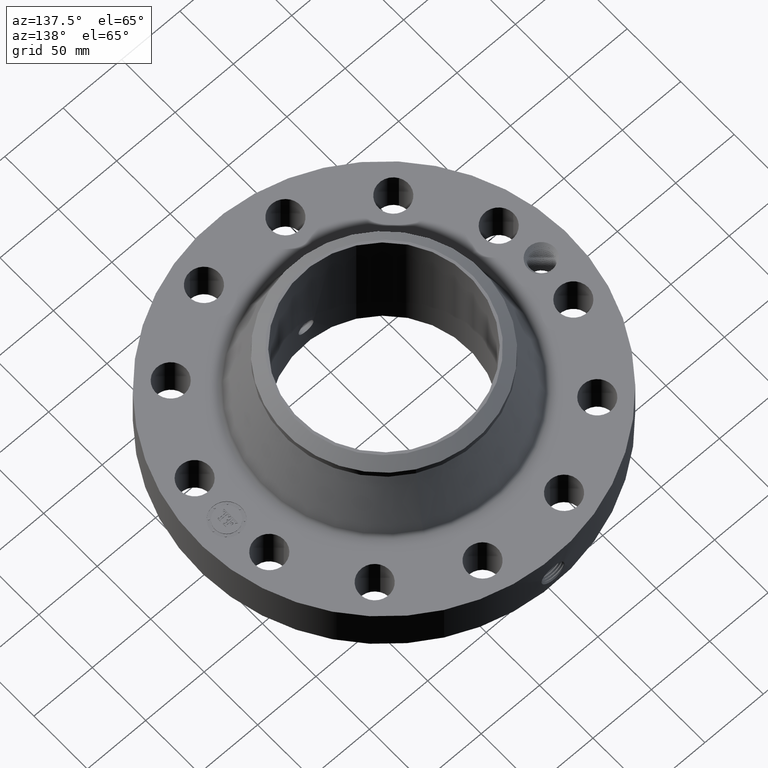
[diagram: clean part render]
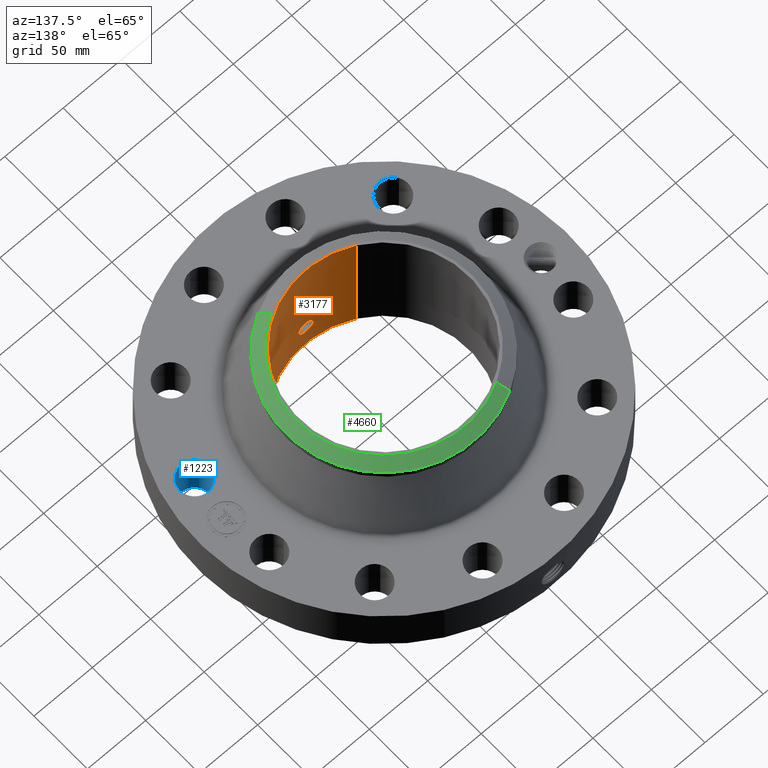
[diagram: same view with three faces highlighted in distinct colors, each labeled with its STEP entity id]
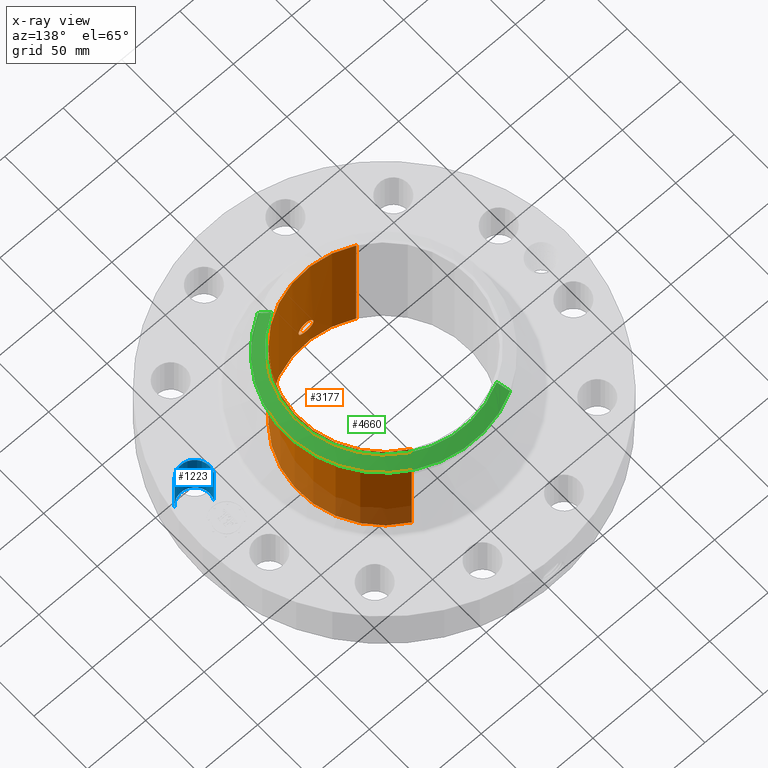
[diagram: x-ray of the same camera — body ghosted, the three highlighted faces saturated]
A machine part, auxiliary view with three faces highlighted in distinct colors.
The next image is the same camera in x-ray (body ghosted, the three faces saturated) — at least one of them is partly hidden behind the body in this view.
Their STEP definitions:

[orange] entity #3177 — the highlighted cylindrical surface (partial cylindrical patch) has radius 73.1647 mm, axis along (0, 0, -1).
#2413=AXIS2_PLACEMENT_3D('Circle Axis2P3D',#2411,#2412,$) ;
#3108=AXIS2_PLACEMENT_3D('Cylinder Axis2P3D',#3105,#3106,#3107) ;
#3112=AXIS2_PLACEMENT_3D('Circle Axis2P3D',#3110,#3111,$) ;
#2411=CARTESIAN_POINT('Axis2P3D Location',(0.,0.,0.)) ;
#2415=CARTESIAN_POINT('Vertex',(1.38098526395,2.52787656954,-4.75560098737E-015)) ;
#2417=CARTESIAN_POINT('Vertex',(-1.38098526395,-2.52787656954,-4.75560098737E-015)) ;
#3105=CARTESIAN_POINT('Axis2P3D Location',(0.,0.,2.15500000001)) ;
#3110=CARTESIAN_POINT('Axis2P3D Location',(0.,0.,4.31000000002)) ;
#3114=CARTESIAN_POINT('Vertex',(1.38098526395,2.52787656954,4.31000000002)) ;
#3116=CARTESIAN_POINT('Vertex',(-1.38098526395,-2.52787656954,4.31000000002)) ;
#3119=CARTESIAN_POINT('Line Origine',(1.38098526395,2.52787656954,2.15500000001)) ;
#3124=CARTESIAN_POINT('Line Origine',(-1.38098526395,-2.52787656954,2.15500000001)) ;
#3136=CARTESIAN_POINT('Control Point',(0.219395640473,-2.87213262281,0.820143615352)) ;
#3137=CARTESIAN_POINT('Control Point',(0.206922351994,-2.87308542878,0.797311413941)) ;
#3138=CARTESIAN_POINT('Control Point',(0.191481712054,-2.87419679655,0.776106922427)) ;
#3139=CARTESIAN_POINT('Control Point',(0.173354194304,-2.87538062812,0.757039851549)) ;
#3140=CARTESIAN_POINT('Control Point',(0.112199588947,-2.87880172466,0.707595306854)) ;
#3141=CARTESIAN_POINT('Control Point',(0.0350911619242,-2.88102435561,0.684052285299)) ;
#3142=CARTESIAN_POINT('Control Point',(-0.0194446568683,-2.88119275664,0.682387754084)) ;
#3143=CARTESIAN_POINT('Control Point',(-0.123995866105,-2.87875349424,0.707470692967)) ;
#3144=CARTESIAN_POINT('Control Point',(-0.203020087908,-2.87369160983,0.780247656575)) ;
#3145=CARTESIAN_POINT('Control Point',(-0.232033505256,-2.87119266303,0.826385712057)) ;
#3146=CARTESIAN_POINT('Control Point',(-0.255810454033,-2.86912592234,0.904571676266)) ;
#3147=CARTESIAN_POINT('Control Point',(-0.24833574192,-2.86977503044,0.984035441531)) ;
#3148=CARTESIAN_POINT('Control Point',(-0.242100701757,-2.87032479534,1.01068292889)) ;
#3149=CARTESIAN_POINT('Control Point',(-0.23234801951,-2.87114322021,1.03614721386)) ;
#3150=CARTESIAN_POINT('Control Point',(-0.219395640473,-2.87213262281,1.05985638466)) ;
#3151=CARTESIAN_POINT('Vertex',(0.219395640473,-2.87213262281,0.820143615352)) ;
#3153=CARTESIAN_POINT('Vertex',(-0.219395640473,-2.87213262281,1.05985638466)) ;
#3157=CARTESIAN_POINT('Control Point',(-0.219395640473,-2.87213262281,1.05985638466)) ;
#3158=CARTESIAN_POINT('Control Point',(-0.206922351993,-2.87308542878,1.08268858607)) ;
#3159=CARTESIAN_POINT('Control Point',(-0.191481712053,-2.87419679655,1.10389307758)) ;
#3160=CARTESIAN_POINT('Control Point',(-0.173354194305,-2.87538062812,1.12296014846)) ;
#3161=CARTESIAN_POINT('Control Point',(-0.11219958895,-2.87880172466,1.17240469315)) ;
#3162=CARTESIAN_POINT('Control Point',(-0.0350911619287,-2.88102435561,1.19594771471)) ;
#3163=CARTESIAN_POINT('Control Point',(0.0194446568713,-2.88119275664,1.19761224592)) ;
#3164=CARTESIAN_POINT('Control Point',(0.123995866126,-2.87875349424,1.17252930703)) ;
#3165=CARTESIAN_POINT('Control Point',(0.20302008794,-2.87369160983,1.0997523434)) ;
#3166=CARTESIAN_POINT('Control Point',(0.232033505243,-2.87119266303,1.05361428799)) ;
#3167=CARTESIAN_POINT('Control Point',(0.255810454027,-2.86912592234,0.975428323789)) ;
#3168=CARTESIAN_POINT('Control Point',(0.248335741925,-2.86977503044,0.89596455853)) ;
#3169=CARTESIAN_POINT('Control Point',(0.242100701738,-2.87032479534,0.869317071068)) ;
#3170=CARTESIAN_POINT('Control Point',(0.232348019497,-2.87114322021,0.843852786122)) ;
#3171=CARTESIAN_POINT('Control Point',(0.219395640473,-2.87213262281,0.820143615352)) ;
#2412=DIRECTION('Axis2P3D Direction',(0.,0.,-0.0393700787402)) ;
#3106=DIRECTION('Axis2P3D Direction',(0.,0.,-0.0393700787402)) ;
#3107=DIRECTION('Axis2P3D XDirection',(-0.0188750212049,-0.0345504945626,0.)) ;
#3111=DIRECTION('Axis2P3D Direction',(0.,0.,-0.0393700787402)) ;
#3120=DIRECTION('Vector Direction',(0.,0.,-0.0393700787402)) ;
#3125=DIRECTION('Vector Direction',(0.,0.,-0.0393700787402)) ;
#3121=VECTOR('Line Direction',#3120,0.0393700787402) ;
#3126=VECTOR('Line Direction',#3125,0.0393700787402) ;
#3130=ORIENTED_EDGE('',*,*,#3118,.F.) ;
#3131=ORIENTED_EDGE('',*,*,#3123,.T.) ;
#3132=ORIENTED_EDGE('',*,*,#2419,.T.) ;
#3133=ORIENTED_EDGE('',*,*,#3128,.F.) ;
#3174=ORIENTED_EDGE('',*,*,#3155,.F.) ;
#3175=ORIENTED_EDGE('',*,*,#3172,.F.) ;
#3176=FACE_BOUND('',#3173,.T.) ;
#3177=ADVANCED_FACE('PartBody',(#3134,#3176),#3109,.F.) ;
#3135=B_SPLINE_CURVE_WITH_KNOTS('',5,(#3136,#3137,#3138,#3139,#3140,#3141,#3142,#3143,#3144,#3145,#3146,#3147,#3148,#3149,#3150),.UNSPECIFIED.,.F.,.U.,(6,3,3,3,6),(0.,4.67594679188,14.0198370776,23.3697183252,28.2252650641),.UNSPECIFIED.) ;
#3156=B_SPLINE_CURVE_WITH_KNOTS('',5,(#3157,#3158,#3159,#3160,#3161,#3162,#3163,#3164,#3165,#3166,#3167,#3168,#3169,#3170,#3171),.UNSPECIFIED.,.F.,.U.,(6,3,3,3,6),(0.,4.67594679202,14.0198370775,23.3697183289,28.2252650631),.UNSPECIFIED.) ;
#2414=CIRCLE('generated circle',#2413,2.88050000001) ;
#3113=CIRCLE('generated circle',#3112,2.88050000001) ;
#3109=CYLINDRICAL_SURFACE('generated cylinder',#3108,2.88050000001) ;
#2419=EDGE_CURVE('',#2416,#2418,#2414,.T.) ;
#3118=EDGE_CURVE('',#3115,#3117,#3113,.T.) ;
#3123=EDGE_CURVE('',#3115,#2416,#3122,.T.) ;
#3128=EDGE_CURVE('',#3117,#2418,#3127,.T.) ;
#3155=EDGE_CURVE('',#3152,#3154,#3135,.T.) ;
#3172=EDGE_CURVE('',#3154,#3152,#3156,.T.) ;
#3129=EDGE_LOOP('',(#3130,#3131,#3132,#3133)) ;
#3173=EDGE_LOOP('',(#3174,#3175)) ;
#3134=FACE_OUTER_BOUND('',#3129,.T.) ;
#3122=LINE('Line',#3119,#3121) ;
#3127=LINE('Line',#3124,#3126) ;
#2416=VERTEX_POINT('',#2415) ;
#2418=VERTEX_POINT('',#2417) ;
#3115=VERTEX_POINT('',#3114) ;
#3117=VERTEX_POINT('',#3116) ;
#3152=VERTEX_POINT('',#3151) ;
#3154=VERTEX_POINT('',#3153) ;

[blue] entity #1223 — the highlighted cylindrical surface (edge-blend (fillet) strip) has radius 12.7 mm, axis along (0, -0, -1).
#195=AXIS2_PLACEMENT_3D('Circle Axis2P3D',#193,#194,$) ;
#564=AXIS2_PLACEMENT_3D('Circle Axis2P3D',#562,#563,$) ;
#1205=AXIS2_PLACEMENT_3D('Cylinder Axis2P3D',#1202,#1203,#1204) ;
#193=CARTESIAN_POINT('Axis2P3D Location',(5.12906613762,-1.3743291295,0.250000000001)) ;
#197=CARTESIAN_POINT('Vertex',(5.56785741856,-1.6140418988,0.250000000001)) ;
#199=CARTESIAN_POINT('Vertex',(4.69027485667,-1.1346163602,0.250000000001)) ;
#557=CARTESIAN_POINT('Vertex',(4.69027485667,-1.1346163602,1.87000000001)) ;
#559=CARTESIAN_POINT('Vertex',(5.56785741856,-1.6140418988,1.87000000001)) ;
#562=CARTESIAN_POINT('Axis2P3D Location',(5.12906613762,-1.3743291295,1.87000000001)) ;
#1202=CARTESIAN_POINT('Axis2P3D Location',(5.12906613762,-1.3743291295,1.86606299213)) ;
#1207=CARTESIAN_POINT('Line Origine',(5.56785741856,-1.6140418988,1.06)) ;
#1212=CARTESIAN_POINT('Line Origine',(4.69027485667,-1.1346163602,1.06)) ;
#194=DIRECTION('Axis2P3D Direction',(0.,0.,-0.0393700787402)) ;
#563=DIRECTION('Axis2P3D Direction',(0.,0.,-0.0393700787402)) ;
#1203=DIRECTION('Axis2P3D Direction',(0.,-0.,-0.0393700787402)) ;
#1204=DIRECTION('Axis2P3D XDirection',(-0.0345504945626,0.0188750212049,0.)) ;
#1208=DIRECTION('Vector Direction',(0.,0.,-0.0393700787402)) ;
#1213=DIRECTION('Vector Direction',(0.,0.,-0.0393700787402)) ;
#1209=VECTOR('Line Direction',#1208,0.0393700787402) ;
#1214=VECTOR('Line Direction',#1213,0.0393700787402) ;
#1218=ORIENTED_EDGE('',*,*,#1211,.F.) ;
#1219=ORIENTED_EDGE('',*,*,#201,.T.) ;
#1220=ORIENTED_EDGE('',*,*,#1216,.T.) ;
#1221=ORIENTED_EDGE('',*,*,#566,.F.) ;
#1223=ADVANCED_FACE('PartBody',(#1222),#1206,.F.) ;
#196=CIRCLE('generated circle',#195,0.500000000002) ;
#565=CIRCLE('generated circle',#564,0.500000000002) ;
#1206=CYLINDRICAL_SURFACE('generated cylinder',#1205,0.500000000002) ;
#201=EDGE_CURVE('',#198,#200,#196,.T.) ;
#566=EDGE_CURVE('',#560,#558,#565,.T.) ;
#1211=EDGE_CURVE('',#198,#560,#1210,.F.) ;
#1216=EDGE_CURVE('',#200,#558,#1215,.F.) ;
#1217=EDGE_LOOP('',(#1218,#1219,#1220,#1221)) ;
#1222=FACE_OUTER_BOUND('',#1217,.T.) ;
#1210=LINE('Line',#1207,#1209) ;
#1215=LINE('Line',#1212,#1214) ;
#198=VERTEX_POINT('',#197) ;
#200=VERTEX_POINT('',#199) ;
#558=VERTEX_POINT('',#557) ;
#560=VERTEX_POINT('',#559) ;

[green] entity #4660 — the highlighted conical surface has half-angle 52.5 deg.
#3475=AXIS2_PLACEMENT_3D('Circle Axis2P3D',#3473,#3474,$) ;
#3502=AXIS2_PLACEMENT_3D('Circle Axis2P3D',#3500,#3501,$) ;
#4282=AXIS2_PLACEMENT_3D('Circle Axis2P3D',#4280,#4281,$) ;
#4641=AXIS2_PLACEMENT_3D('Cone Axis2P3D',#4638,#4639,#4640) ;
#3470=CARTESIAN_POINT('Vertex',(1.58929566048,2.90918619268,4.03701587161)) ;
#3473=CARTESIAN_POINT('Axis2P3D Location',(0.,0.,4.03701587161)) ;
#3477=CARTESIAN_POINT('Vertex',(1.58929566048,-2.90918619268,4.03701587161)) ;
#3497=CARTESIAN_POINT('Vertex',(-1.58929566048,2.90918619268,4.03701587161)) ;
#3500=CARTESIAN_POINT('Axis2P3D Location',(0.,0.,4.03701587161)) ;
#4280=CARTESIAN_POINT('Axis2P3D Location',(0.,0.,4.31000000002)) ;
#4284=CARTESIAN_POINT('Vertex',(1.41873530636,-2.59697755866,4.31000000002)) ;
#4286=CARTESIAN_POINT('Vertex',(-1.41873530636,2.59697755866,4.31000000002)) ;
#4638=CARTESIAN_POINT('Axis2P3D Location',(0.,0.,4.31000000002)) ;
#4643=CARTESIAN_POINT('Line Origine',(-1.50401548342,2.75308187567,4.17350793581)) ;
#4648=CARTESIAN_POINT('Line Origine',(1.50401548342,-2.75308187567,4.17350793581)) ;
#3474=DIRECTION('Axis2P3D Direction',(0.,0.,-0.0393700787402)) ;
#3501=DIRECTION('Axis2P3D Direction',(0.,0.,-0.0393700787402)) ;
#4281=DIRECTION('Axis2P3D Direction',(0.,0.,-0.0393700787402)) ;
#4639=DIRECTION('Axis2P3D Direction',(-0.,-0.,-0.0393700787402)) ;
#4640=DIRECTION('Axis2P3D XDirection',(0.0188750212049,-0.0345504945626,0.)) ;
#4644=DIRECTION('Vector Direction',(-0.014974561121,0.02741075027,-0.023966985394)) ;
#4649=DIRECTION('Vector Direction',(0.014974561121,-0.02741075027,-0.023966985394)) ;
#4645=VECTOR('Line Direction',#4644,0.0393700787402) ;
#4650=VECTOR('Line Direction',#4649,0.0393700787402) ;
#4654=ORIENTED_EDGE('',*,*,#4647,.F.) ;
#4655=ORIENTED_EDGE('',*,*,#4288,.F.) ;
#4656=ORIENTED_EDGE('',*,*,#4652,.T.) ;
#4657=ORIENTED_EDGE('',*,*,#3479,.T.) ;
#4658=ORIENTED_EDGE('',*,*,#3504,.F.) ;
#4660=ADVANCED_FACE('PartBody',(#4659),#4642,.T.) ;
#3476=CIRCLE('generated circle',#3475,3.31500000001) ;
#3503=CIRCLE('generated circle',#3502,3.31500000001) ;
#4283=CIRCLE('generated circle',#4282,2.95924015749) ;
#4642=CONICAL_SURFACE('Cone',#4641,2.95924015749,0.916297857297) ;
#3479=EDGE_CURVE('',#3478,#3471,#3476,.F.) ;
#3504=EDGE_CURVE('',#3498,#3471,#3503,.T.) ;
#4288=EDGE_CURVE('',#4285,#4287,#4283,.F.) ;
#4647=EDGE_CURVE('',#4287,#3498,#4646,.T.) ;
#4652=EDGE_CURVE('',#4285,#3478,#4651,.T.) ;
#4653=EDGE_LOOP('',(#4654,#4655,#4656,#4657,#4658)) ;
#4659=FACE_OUTER_BOUND('',#4653,.T.) ;
#4646=LINE('Line',#4643,#4645) ;
#4651=LINE('Line',#4648,#4650) ;
#3471=VERTEX_POINT('',#3470) ;
#3478=VERTEX_POINT('',#3477) ;
#3498=VERTEX_POINT('',#3497) ;
#4285=VERTEX_POINT('',#4284) ;
#4287=VERTEX_POINT('',#4286) ;